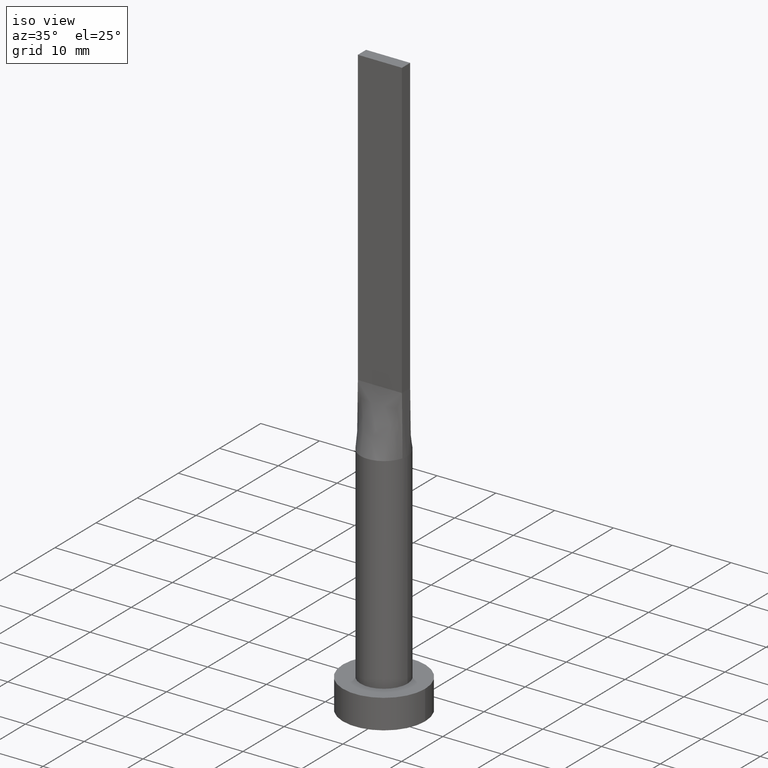
[diagram: clean part render]
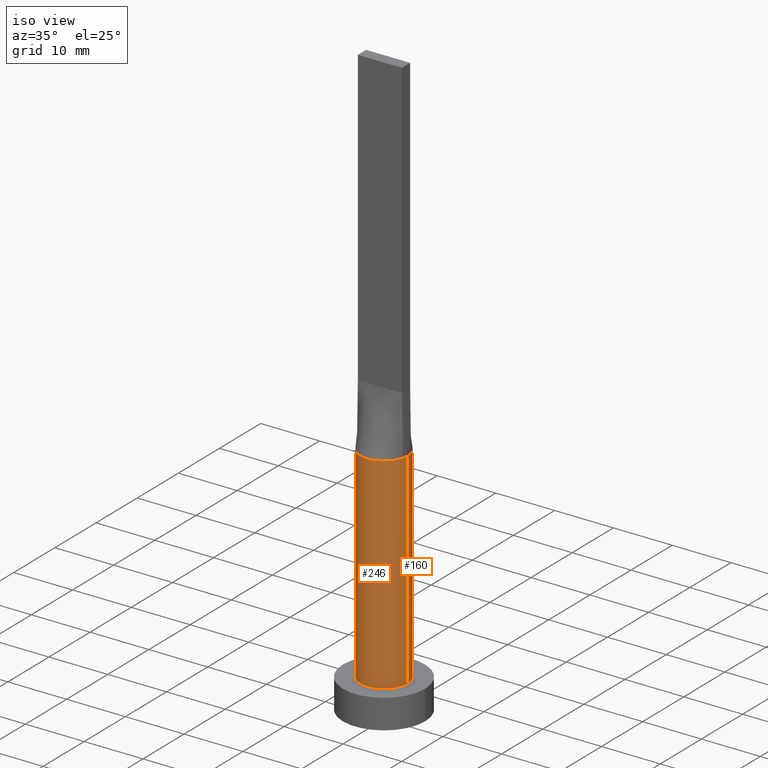
[diagram: same view with one multi-face feature highlighted, each face labeled with its STEP entity id]
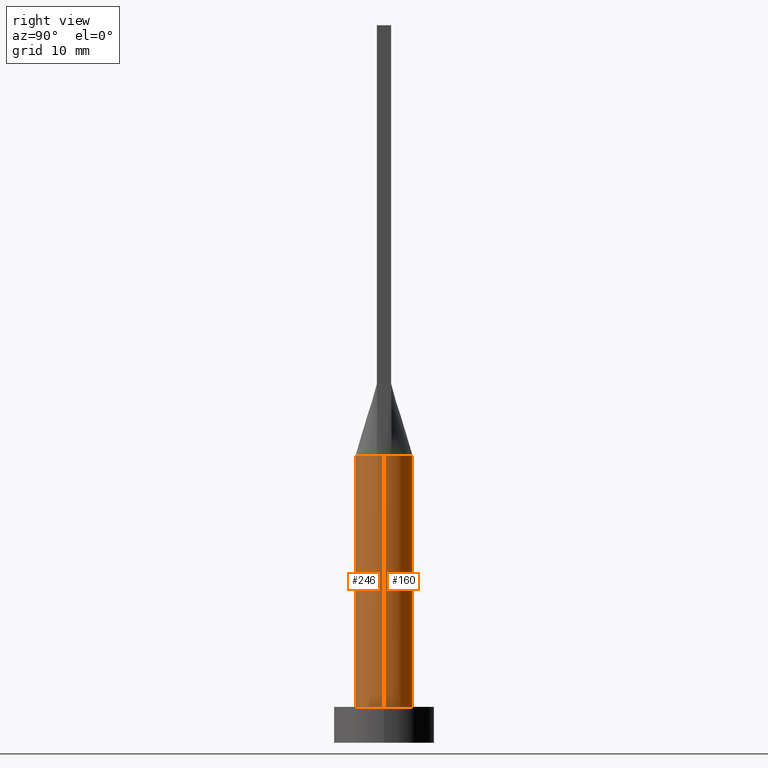
[diagram: same view with one multi-face feature highlighted, each face labeled with its STEP entity id]
A machine part, iso view. The highlighted faces form ONE feature: a constant-radius fillet chain: 2 tangent blend faces with common blend radius 4 mm. The faces share edges in the B-rep.
A second angle (right view) of the same feature is appended — it is thin or edge-on in the first view.
Their STEP definitions:
[1] entity #246 (Cylinder):
#11 = AXIS2_PLACEMENT_3D ( 'NONE', #215, #263, #35 ) ;
#25 = LINE ( 'NONE', #386, #199 ) ;
#34 = AXIS2_PLACEMENT_3D ( 'NONE', #209, #555, #338 ) ;
#35 = DIRECTION ( 'NONE',  ( 1.000000000000000000, 0.000000000000000000, 0.000000000000000000 ) ) ;
#44 = CARTESIAN_POINT ( 'NONE',  ( 0.000000000000000000, 0.000000000000000000, 40.00000000000000000 ) ) ;
#45 = FACE_OUTER_BOUND ( 'NONE', #373, .T. ) ;
#56 = AXIS2_PLACEMENT_3D ( 'NONE', #481, #406, #177 ) ;
#87 = DIRECTION ( 'NONE',  ( 1.000000000000000000, -6.217248937900876626E-15, 0.000000000000000000 ) ) ;
#89 = CARTESIAN_POINT ( 'NONE',  ( -3.865220763612065902, -1.030726602927787949, 40.00000000000000000 ) ) ;
#107 = DIRECTION ( 'NONE',  ( 0.000000000000000000, 0.000000000000000000, 1.000000000000000000 ) ) ;
#112 = VECTOR ( 'NONE', #161, 1000.000000000000000 ) ;
#127 = EDGE_CURVE ( 'NONE', #389, #401, #25, .T. ) ;
#134 = CIRCLE ( 'NONE', #253, 4.000000000000000000 ) ;
#143 = CIRCLE ( 'NONE', #34, 4.000000000000000000 ) ;
#147 = ORIENTED_EDGE ( 'NONE', *, *, #532, .F. ) ;
#157 = CARTESIAN_POINT ( 'NONE',  ( -4.000000000000000000, 0.000000000000000000, 5.000000000000000000 ) ) ;
#161 = DIRECTION ( 'NONE',  ( -0.000000000000000000, -0.000000000000000000, -1.000000000000000000 ) ) ;
#173 = CARTESIAN_POINT ( 'NONE',  ( 3.865244591400370577, -1.030732999276501527, 40.00000000000000000 ) ) ;
#177 = DIRECTION ( 'NONE',  ( -1.000000000000000000, 0.000000000000000000, 0.000000000000000000 ) ) ;
#184 = ORIENTED_EDGE ( 'NONE', *, *, #422, .F. ) ;
#191 = VERTEX_POINT ( 'NONE', #173 ) ;
#199 = VECTOR ( 'NONE', #427, 1000.000000000000000 ) ;
#209 = CARTESIAN_POINT ( 'NONE',  ( 0.000000000000000000, 0.000000000000000000, 5.000000000000000000 ) ) ;
#215 = CARTESIAN_POINT ( 'NONE',  ( 0.000000000000000000, 0.000000000000000000, 40.00000000000000000 ) ) ;
#219 = VERTEX_POINT ( 'NONE', #307 ) ;
#227 = EDGE_CURVE ( 'NONE', #573, #191, #520, .T. ) ;
#234 = VERTEX_POINT ( 'NONE', #399 ) ;
#246 = ADVANCED_FACE ( 'NONE', ( #45 ), #402, .T. ) ;
#253 = AXIS2_PLACEMENT_3D ( 'NONE', #44, #572, #87 ) ;
#263 = DIRECTION ( 'NONE',  ( 0.000000000000000000, 0.000000000000000000, 1.000000000000000000 ) ) ;
#265 = ORIENTED_EDGE ( 'NONE', *, *, #457, .F. ) ;
#307 = CARTESIAN_POINT ( 'NONE',  ( 4.000000000000000000, 4.898587196589412829E-16, 5.000000000000000000 ) ) ;
#338 = DIRECTION ( 'NONE',  ( 1.000000000000000000, 0.000000000000000000, 0.000000000000000000 ) ) ;
#341 = LINE ( 'NONE', #391, #112 ) ;
#344 = CARTESIAN_POINT ( 'NONE',  ( 0.000000000000000000, 0.000000000000000000, 40.00000000000000000 ) ) ;
#352 = ORIENTED_EDGE ( 'NONE', *, *, #227, .F. ) ;
#363 = CIRCLE ( 'NONE', #564, 4.000000000000000000 ) ;
#373 = EDGE_LOOP ( 'NONE', ( #184, #147, #352, #265, #560, #447 ) ) ;
#386 = CARTESIAN_POINT ( 'NONE',  ( -4.000000000000000000, 0.000000000000000000, 40.00000000000000000 ) ) ;
#389 = VERTEX_POINT ( 'NONE', #436 ) ;
#391 = CARTESIAN_POINT ( 'NONE',  ( 4.000000000000000000, 4.898587196589412829E-16, 40.00000000000000000 ) ) ;
#399 = CARTESIAN_POINT ( 'NONE',  ( 4.000000000000000000, -1.256865613583667397E-17, 39.99999999999999289 ) ) ;
#401 = VERTEX_POINT ( 'NONE', #157 ) ;
#402 = CYLINDRICAL_SURFACE ( 'NONE', #56, 4.000000000000000000 ) ;
#406 = DIRECTION ( 'NONE',  ( -0.000000000000000000, -0.000000000000000000, -1.000000000000000000 ) ) ;
#413 = EDGE_CURVE ( 'NONE', #401, #219, #143, .T. ) ;
#422 = EDGE_CURVE ( 'NONE', #234, #219, #341, .T. ) ;
#427 = DIRECTION ( 'NONE',  ( -0.000000000000000000, -0.000000000000000000, -1.000000000000000000 ) ) ;
#436 = CARTESIAN_POINT ( 'NONE',  ( -4.000000000000000000, -2.459132308497027359E-16, 39.99999999999999289 ) ) ;
#447 = ORIENTED_EDGE ( 'NONE', *, *, #413, .T. ) ;
#457 = EDGE_CURVE ( 'NONE', #389, #573, #363, .T. ) ;
#465 = DIRECTION ( 'NONE',  ( 1.000000000000000000, 0.000000000000000000, 0.000000000000000000 ) ) ;
#481 = CARTESIAN_POINT ( 'NONE',  ( 0.000000000000000000, 0.000000000000000000, 40.00000000000000000 ) ) ;
#520 = CIRCLE ( 'NONE', #11, 4.000000000000000000 ) ;
#532 = EDGE_CURVE ( 'NONE', #191, #234, #134, .T. ) ;
#555 = DIRECTION ( 'NONE',  ( 0.000000000000000000, 0.000000000000000000, 1.000000000000000000 ) ) ;
#560 = ORIENTED_EDGE ( 'NONE', *, *, #127, .T. ) ;
#564 = AXIS2_PLACEMENT_3D ( 'NONE', #344, #107, #465 ) ;
#572 = DIRECTION ( 'NONE',  ( 0.000000000000000000, 0.000000000000000000, 1.000000000000000000 ) ) ;
#573 = VERTEX_POINT ( 'NONE', #89 ) ;
[2] entity #160 (Cylinder):
#2 = CIRCLE ( 'NONE', #190, 4.000000000000000000 ) ;
#25 = LINE ( 'NONE', #386, #199 ) ;
#26 = CARTESIAN_POINT ( 'NONE',  ( 3.865212754195084699, 1.030724393897464841, 40.00000000000000000 ) ) ;
#39 = FACE_OUTER_BOUND ( 'NONE', #566, .T. ) ;
#78 = CIRCLE ( 'NONE', #475, 4.000000000000000000 ) ;
#81 = CARTESIAN_POINT ( 'NONE',  ( -3.009488128496037529, 2.672487015486668671, 39.99999999999998579 ) ) ;
#90 = EDGE_CURVE ( 'NONE', #234, #431, #2, .T. ) ;
#91 = CARTESIAN_POINT ( 'NONE',  ( -3.781952206537765537, 1.341853921743403788, 40.00000000000000000 ) ) ;
#103 = ORIENTED_EDGE ( 'NONE', *, *, #422, .T. ) ;
#112 = VECTOR ( 'NONE', #161, 1000.000000000000000 ) ;
#116 = CARTESIAN_POINT ( 'NONE',  ( 3.865212754195084699, 1.030724393897464841, 40.00000000000000000 ) ) ;
#123 = CIRCLE ( 'NONE', #414, 4.000000000000000000 ) ;
#124 = CARTESIAN_POINT ( 'NONE',  ( -0.5121855420560009753, 4.000000000000000888, 40.00000000000000000 ) ) ;
#127 = EDGE_CURVE ( 'NONE', #389, #401, #25, .T. ) ;
#135 = CYLINDRICAL_SURFACE ( 'NONE', #574, 4.000000000000000000 ) ;
#150 = EDGE_CURVE ( 'NONE', #431, #563, #581, .T. ) ;
#157 = CARTESIAN_POINT ( 'NONE',  ( -4.000000000000000000, 0.000000000000000000, 5.000000000000000000 ) ) ;
#160 = ADVANCED_FACE ( 'NONE', ( #39 ), #135, .T. ) ;
#161 = DIRECTION ( 'NONE',  ( -0.000000000000000000, -0.000000000000000000, -1.000000000000000000 ) ) ;
#169 = CARTESIAN_POINT ( 'NONE',  ( -1.023074425454088221, 3.898373771260455811, 40.00000000000000000 ) ) ;
#190 = AXIS2_PLACEMENT_3D ( 'NONE', #561, #248, #251 ) ;
#199 = VECTOR ( 'NONE', #427, 1000.000000000000000 ) ;
#201 = CARTESIAN_POINT ( 'NONE',  ( 0.000000000000000000, 0.000000000000000000, 5.000000000000000000 ) ) ;
#217 = DIRECTION ( 'NONE',  ( -1.000000000000000000, 0.000000000000000000, 0.000000000000000000 ) ) ;
#219 = VERTEX_POINT ( 'NONE', #307 ) ;
#234 = VERTEX_POINT ( 'NONE', #399 ) ;
#248 = DIRECTION ( 'NONE',  ( 0.000000000000000000, 0.000000000000000000, 1.000000000000000000 ) ) ;
#251 = DIRECTION ( 'NONE',  ( 1.000000000000000000, 0.000000000000000000, 0.000000000000000000 ) ) ;
#256 = CARTESIAN_POINT ( 'NONE',  ( 3.009488128496037085, 2.672487015486669115, 40.00000000000000000 ) ) ;
#283 = ORIENTED_EDGE ( 'NONE', *, *, #432, .F. ) ;
#285 = CARTESIAN_POINT ( 'NONE',  ( 0.000000000000000000, 0.000000000000000000, 40.00000000000000000 ) ) ;
#296 = CARTESIAN_POINT ( 'NONE',  ( 3.653499896451231521, 1.673258289339057958, 40.00000000000001421 ) ) ;
#305 = CARTESIAN_POINT ( 'NONE',  ( -3.267840578657194239, 2.338604872288698289, 40.00000000000000711 ) ) ;
#307 = CARTESIAN_POINT ( 'NONE',  ( 4.000000000000000000, 4.898587196589412829E-16, 5.000000000000000000 ) ) ;
#309 = ORIENTED_EDGE ( 'NONE', *, *, #127, .F. ) ;
#341 = LINE ( 'NONE', #391, #112 ) ;
#353 = CARTESIAN_POINT ( 'NONE',  ( 0.000000000000000000, 0.000000000000000000, 40.00000000000000000 ) ) ;
#382 = DIRECTION ( 'NONE',  ( 0.000000000000000000, 0.000000000000000000, 1.000000000000000000 ) ) ;
#384 = CARTESIAN_POINT ( 'NONE',  ( 3.781952206537764205, 1.341853921743403788, 39.99999999999999289 ) ) ;
#386 = CARTESIAN_POINT ( 'NONE',  ( -4.000000000000000000, 0.000000000000000000, 40.00000000000000000 ) ) ;
#389 = VERTEX_POINT ( 'NONE', #436 ) ;
#391 = CARTESIAN_POINT ( 'NONE',  ( 4.000000000000000000, 4.898587196589412829E-16, 40.00000000000000000 ) ) ;
#397 = CARTESIAN_POINT ( 'NONE',  ( 0.5121855420560009753, 4.000000000000000888, 40.00000000000000000 ) ) ;
#399 = CARTESIAN_POINT ( 'NONE',  ( 4.000000000000000000, -1.256865613583667397E-17, 39.99999999999999289 ) ) ;
#401 = VERTEX_POINT ( 'NONE', #157 ) ;
#414 = AXIS2_PLACEMENT_3D ( 'NONE', #285, #425, #559 ) ;
#422 = EDGE_CURVE ( 'NONE', #234, #219, #341, .T. ) ;
#425 = DIRECTION ( 'NONE',  ( 0.000000000000000000, 0.000000000000000000, 1.000000000000000000 ) ) ;
#427 = DIRECTION ( 'NONE',  ( -0.000000000000000000, -0.000000000000000000, -1.000000000000000000 ) ) ;
#431 = VERTEX_POINT ( 'NONE', #26 ) ;
#432 = EDGE_CURVE ( 'NONE', #563, #389, #123, .T. ) ;
#436 = CARTESIAN_POINT ( 'NONE',  ( -4.000000000000000000, -2.459132308497027359E-16, 39.99999999999999289 ) ) ;
#439 = CARTESIAN_POINT ( 'NONE',  ( -3.653499896451231521, 1.673258289339058180, 40.00000000000001421 ) ) ;
#440 = EDGE_CURVE ( 'NONE', #219, #401, #78, .T. ) ;
#442 = ORIENTED_EDGE ( 'NONE', *, *, #150, .F. ) ;
#443 = DIRECTION ( 'NONE',  ( -0.000000000000000000, -0.000000000000000000, -1.000000000000000000 ) ) ;
#445 = CARTESIAN_POINT ( 'NONE',  ( -1.940702937457743138, 3.532374760555930582, 40.00000000000000000 ) ) ;
#451 = CARTESIAN_POINT ( 'NONE',  ( -2.346407003458401253, 3.270103945996944095, 40.00000000000000000 ) ) ;
#473 = CARTESIAN_POINT ( 'NONE',  ( 3.267840578657193795, 2.338604872288698289, 40.00000000000000000 ) ) ;
#475 = AXIS2_PLACEMENT_3D ( 'NONE', #201, #382, #509 ) ;
#479 = CARTESIAN_POINT ( 'NONE',  ( 1.940702937457743582, 3.532374760555930582, 40.00000000000000000 ) ) ;
#483 = ORIENTED_EDGE ( 'NONE', *, *, #90, .F. ) ;
#509 = DIRECTION ( 'NONE',  ( 1.000000000000000000, 0.000000000000000000, 0.000000000000000000 ) ) ;
#531 = CARTESIAN_POINT ( 'NONE',  ( -3.865236553917747120, 1.030730781768519622, 40.00000000000000000 ) ) ;
#541 = ORIENTED_EDGE ( 'NONE', *, *, #440, .T. ) ;
#559 = DIRECTION ( 'NONE',  ( 1.000000000000000000, 0.000000000000000000, 0.000000000000000000 ) ) ;
#561 = CARTESIAN_POINT ( 'NONE',  ( 0.000000000000000000, 0.000000000000000000, 40.00000000000000000 ) ) ;
#563 = VERTEX_POINT ( 'NONE', #576 ) ;
#565 = CARTESIAN_POINT ( 'NONE',  ( 2.346407003458400808, 3.270103945996944983, 40.00000000000000000 ) ) ;
#566 = EDGE_LOOP ( 'NONE', ( #483, #103, #541, #309, #283, #442 ) ) ;
#567 = CARTESIAN_POINT ( 'NONE',  ( 1.023074425454087999, 3.898373771260456255, 40.00000000000000000 ) ) ;
#574 = AXIS2_PLACEMENT_3D ( 'NONE', #353, #443, #217 ) ;
#576 = CARTESIAN_POINT ( 'NONE',  ( -3.865236553917747120, 1.030730781768519622, 40.00000000000000000 ) ) ;
#581 = B_SPLINE_CURVE_WITH_KNOTS ( 'NONE', 3,
 ( #116, #384, #296, #473, #256, #565, #479, #567, #397, #124, #169, #445, #451, #81, #305, #439, #91, #531 ),
 .UNSPECIFIED., .F., .F.,
 ( 4, 2, 2, 2, 2, 2, 2, 2, 4 ),
 ( 0.000000000000000000, 0.1250000000000000000, 0.2500000000000000000, 0.3750000000000000000, 0.5000000000000000000, 0.6250000000000000000, 0.7500000000000000000, 0.8750000000000000000, 1.000000000000000000 ),
 .UNSPECIFIED. ) ;